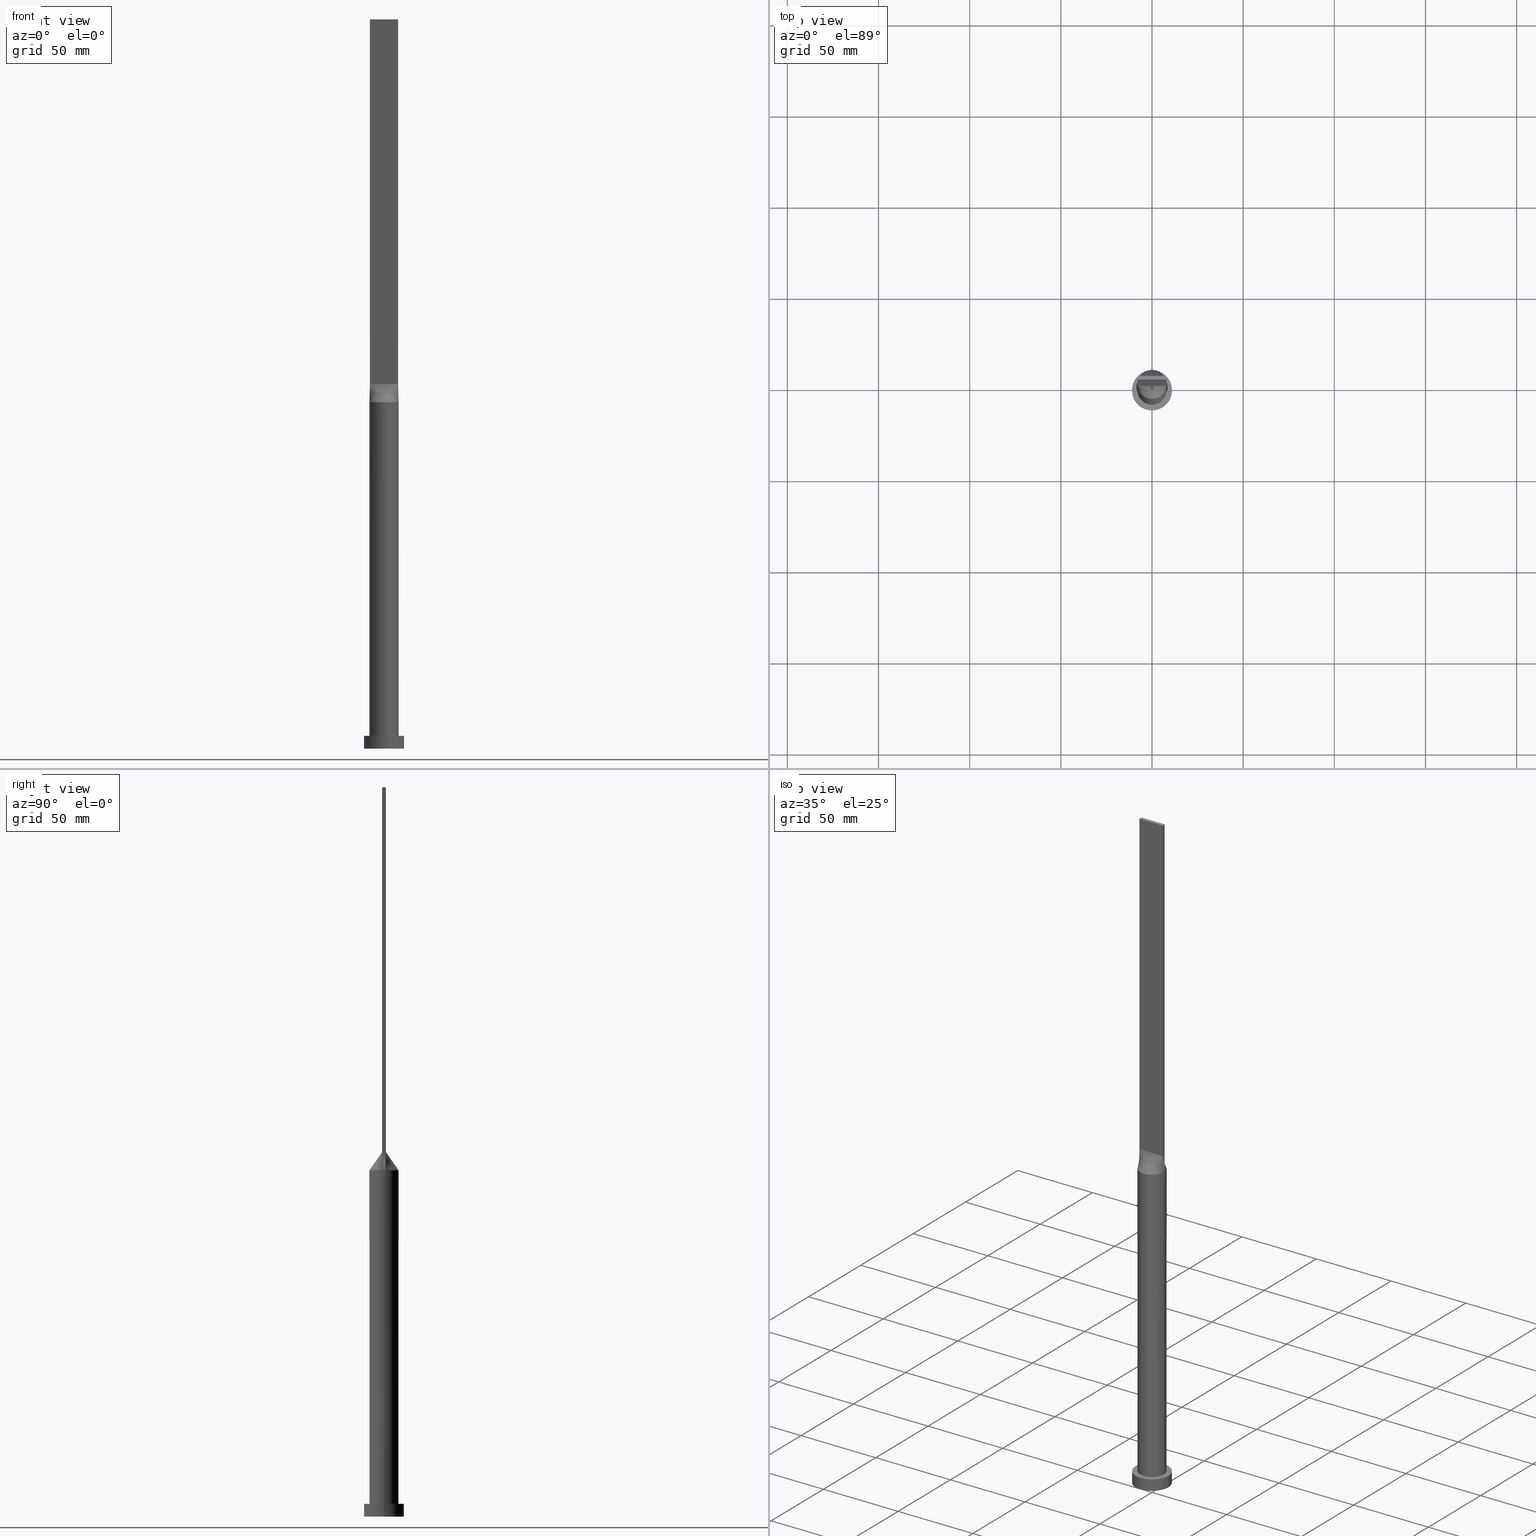
[diagram: canonical four-view strip — front | top / right | iso, engineering-drawing reading convention]
A machine part, canonical four-view strip (front | top / right | iso — engineering-drawing reading convention). The complete STEP part file that produces these views, byte-faithful:
ISO-10303-21;
HEADER;
FILE_DESCRIPTION (( 'STEP AP203' ),
    '1' );
FILE_NAME ('eaf4.STEP',
    '2023-02-13T08:32:09',
    ( '' ),
    ( '' ),
    'SwSTEP 2.0',
    'SolidWorks 2019',
    '' );
FILE_SCHEMA (( 'CONFIG_CONTROL_DESIGN' ));
ENDSEC;

DATA;
#1 = PLANE ( 'NONE',  #516 ) ;
#2 = CALENDAR_DATE ( 2023, 13, 2 ) ;
#3 = ORIENTED_EDGE ( 'NONE', *, *, #42, .T. ) ;
#4 = B_SPLINE_SURFACE_WITH_KNOTS ( 'NONE', 3, 1, ( 
 ( #138, #339 ),
 ( #525, #86 ),
 ( #294, #480 ),
 ( #435, #196 ),
 ( #389, #578 ),
 ( #161, #316 ),
 ( #50, #490 ),
 ( #546, #460 ),
 ( #588, #551 ),
 ( #254, #155 ),
 ( #5, #54 ),
 ( #260, #151 ),
 ( #354, #448 ),
 ( #20, #401 ),
 ( #543, #10 ),
 ( #502, #499 ),
 ( #397, #108 ),
 ( #214, #351 ),
 ( #318, #539 ),
 ( #596, #101 ),
 ( #557, #60 ),
 ( #98, #408 ),
 ( #262, #453 ),
 ( #13, #217 ),
 ( #362, #62 ),
 ( #221, #113 ),
 ( #503, #309 ),
 ( #601, #365 ),
 ( #64, #560 ),
 ( #110, #119 ) ),
 .UNSPECIFIED., .F., .F., .F.,
 ( 4, 2, 2, 2, 2, 2, 2, 2, 2, 2, 2, 2, 2, 2, 4 ),
 ( 2, 2 ),
 ( 0.000000000000000000, 0.1250000000000000555, 0.1875000000000000555, 0.2500000000000000555, 0.3125000000000000000, 0.3750000000000000000, 0.4374999999999999445, 0.4999999999999999445, 0.5624999999999998890, 0.6249999999999998890, 0.6875000000000000000, 0.7500000000000000000, 0.8125000000000000000, 0.8750000000000000000, 1.000000000000000000 ),
 ( 0.000000000000000000, 1.000000000000000000 ),
 .UNSPECIFIED. ) ;
#5 = CARTESIAN_POINT ( 'NONE',  ( -3.862537548001458987, -7.028047916340261381, 190.0000000000000000 ) ) ;
#6 = VECTOR ( 'NONE', #592, 1000.000000000000000 ) ;
#7 = VECTOR ( 'NONE', #568, 1000.000000000000000 ) ;
#8 = FACE_OUTER_BOUND ( 'NONE', #149, .T. ) ;
#9 = ORIENTED_EDGE ( 'NONE', *, *, #530, .F. ) ;
#10 = CARTESIAN_POINT ( 'NONE',  ( -0.3229166666666661301, -0.9999999999999991118, 200.0000000000000284 ) ) ;
#11 = CARTESIAN_POINT ( 'NONE',  ( 7.750000000000000000, -0.9999999999999997780, 400.0000000000000000 ) ) ;
#12 = EDGE_CURVE ( 'NONE', #319, #158, #105, .T. ) ;
#13 = CARTESIAN_POINT ( 'NONE',  ( 6.226863775955932212, -5.046530946333159129, 190.0000000000000284 ) ) ;
#14 = EDGE_CURVE ( 'NONE', #32, #61, #519, .T. ) ;
#15 = VERTEX_POINT ( 'NONE', #75 ) ;
#16 = DIRECTION ( 'NONE',  ( 0.000000000000000000, -0.000000000000000000, -1.000000000000000000 ) ) ;
#17 = VERTEX_POINT ( 'NONE', #335 ) ;
#18 = CC_DESIGN_PERSON_AND_ORGANIZATION_ASSIGNMENT ( #278, #231, ( #459 ) ) ;
#19 = VERTEX_POINT ( 'NONE', #417 ) ;
#20 = CARTESIAN_POINT ( 'NONE',  ( -1.172177046651859511, -7.934824862069280726, 189.9999999999999716 ) ) ;
#21 = CARTESIAN_POINT ( 'NONE',  ( 6.994548530637815453, 3.908833842696238570, 189.9999999999999716 ) ) ;
#22 = ORIENTED_EDGE ( 'NONE', *, *, #187, .F. ) ;
#23 = CARTESIAN_POINT ( 'NONE',  ( 2.260416666666666519, 1.000000000000000000, 200.0000000000000000 ) ) ;
#24 = CARTESIAN_POINT ( 'NONE',  ( -7.750000000000000000, -0.6666666666666648533, 200.0000000000000000 ) ) ;
#25 = DIRECTION ( 'NONE',  ( -0.000000000000000000, 0.000000000000000000, -1.000000000000000000 ) ) ;
#26 = ORIENTED_EDGE ( 'NONE', *, *, #485, .T. ) ;
#27 = CC_DESIGN_DATE_AND_TIME_ASSIGNMENT ( #172, #423, ( #247 ) ) ;
#28 = FACE_OUTER_BOUND ( 'NONE', #404, .T. ) ;
#29 = CARTESIAN_POINT ( 'NONE',  ( -7.999729586091648414, -0.3426598302205468571, 190.0000000000000000 ) ) ;
#30 = CARTESIAN_POINT ( 'NONE',  ( 3.229166666666666519, 1.000000000000000000, 200.0000000000000000 ) ) ;
#31 = CARTESIAN_POINT ( 'NONE',  ( 7.750000000000000000, 1.000000000000000000, 400.0000000000000000 ) ) ;
#32 = VERTEX_POINT ( 'NONE', #325 ) ;
#33 = CARTESIAN_POINT ( 'NONE',  ( -1.291666666666666741, 1.000000000000000000, 200.0000000000000000 ) ) ;
#34 = LINE ( 'NONE', #31, #438 ) ;
#35 = CIRCLE ( 'NONE', #84, 11.00000000000000000 ) ;
#36 = FACE_OUTER_BOUND ( 'NONE', #385, .T. ) ;
#37 = CARTESIAN_POINT ( 'NONE',  ( -0.5861720261543129640, 7.999999999999998224, 189.9999999999999432 ) ) ;
#38 = CYLINDRICAL_SURFACE ( 'NONE', #341, 8.000000000000000000 ) ;
#39 = DIRECTION ( 'NONE',  ( 0.000000000000000000, 0.000000000000000000, 1.000000000000000000 ) ) ;
#40 = CARTESIAN_POINT ( 'NONE',  ( 6.994548530637815453, 3.908833842696238570, 189.9999999999999716 ) ) ;
#41 = COORDINATED_UNIVERSAL_TIME_OFFSET ( 1, 0, .AHEAD. ) ;
#42 = EDGE_CURVE ( 'NONE', #251, #32, #115, .T. ) ;
#43 = CARTESIAN_POINT ( 'NONE',  ( 7.977894035085165036, 0.6853196604410960457, 190.0000000000000000 ) ) ;
#44 = CC_DESIGN_APPROVAL ( #132, ( #99 ) ) ;
#45 = CARTESIAN_POINT ( 'NONE',  ( -7.750000000000000000, 1.000000000000000000, 400.0000000000000000 ) ) ;
#46 = DIRECTION ( 'NONE',  ( 1.000000000000000000, 0.000000000000000000, 0.000000000000000000 ) ) ;
#47 = B_SPLINE_SURFACE_WITH_KNOTS ( 'NONE', 3, 1, ( 
 ( #179, #282 ),
 ( #412, #414 ),
 ( #471, #375 ),
 ( #29, #374 ),
 ( #124, #24 ),
 ( #512, #473 ) ),
 .UNSPECIFIED., .F., .F., .F.,
 ( 4, 2, 4 ),
 ( 2, 2 ),
 ( 0.000000000000000000, 0.5000000000000000000, 1.000000000000000000 ),
 ( 0.000000000000000000, 1.000000000000000000 ),
 .UNSPECIFIED. ) ;
#48 = LINE ( 'NONE', #100, #411 ) ;
#49 = ORIENTED_EDGE ( 'NONE', *, *, #378, .F. ) ;
#50 = CARTESIAN_POINT ( 'NONE',  ( -6.226863775955933988, -5.046530946333157353, 190.0000000000000568 ) ) ;
#51 = DIRECTION ( 'NONE',  ( 0.000000000000000000, 0.000000000000000000, 1.000000000000000000 ) ) ;
#52 = CALENDAR_DATE ( 2023, 13, 2 ) ;
#53 = ORIENTED_EDGE ( 'NONE', *, *, #154, .F. ) ;
#54 = CARTESIAN_POINT ( 'NONE',  ( -2.260416666666665630, -0.9999999999999991118, 200.0000000000000284 ) ) ;
#55 = VECTOR ( 'NONE', #571, 1000.000000000000114 ) ;
#56 = AXIS2_PLACEMENT_3D ( 'NONE', #528, #324, #25 ) ;
#57 = LINE ( 'NONE', #11, #623 ) ;
#58 = ADVANCED_FACE ( 'NONE', ( #223 ), #47, .T. ) ;
#59 = ORIENTED_EDGE ( 'NONE', *, *, #277, .F. ) ;
#60 = CARTESIAN_POINT ( 'NONE',  ( 2.583333333333333037, -0.9999999999999991118, 200.0000000000000284 ) ) ;
#61 = VERTEX_POINT ( 'NONE', #327 ) ;
#62 = CARTESIAN_POINT ( 'NONE',  ( 4.520833333333333037, -0.9999999999999995559, 200.0000000000000284 ) ) ;
#63 = VERTEX_POINT ( 'NONE', #467 ) ;
#64 = CARTESIAN_POINT ( 'NONE',  ( 7.849610172922084850, -1.679519592204998357, 190.0000000000000000 ) ) ;
#65 = LINE ( 'NONE', #232, #315 ) ;
#66 = CARTESIAN_POINT ( 'NONE',  ( -3.229166666666666519, 1.000000000000000000, 200.0000000000000568 ) ) ;
#67 = ORIENTED_EDGE ( 'NONE', *, *, #14, .T. ) ;
#68 = CARTESIAN_POINT ( 'NONE',  ( 3.862537548001455878, 7.028047916340264933, 190.0000000000000000 ) ) ;
#69 = ORIENTED_EDGE ( 'NONE', *, *, #530, .T. ) ;
#70 = DIRECTION ( 'NONE',  ( 1.000000000000000000, 0.000000000000000000, 0.000000000000000000 ) ) ;
#71 = ORIENTED_EDGE ( 'NONE', *, *, #274, .F. ) ;
#72 = CARTESIAN_POINT ( 'NONE',  ( -7.750000000000000000, 1.000000000000000000, 200.0000000000000000 ) ) ;
#73 = CARTESIAN_POINT ( 'NONE',  ( 2.302877821226935406, 7.683241396761612663, 190.0000000000000284 ) ) ;
#74 = VECTOR ( 'NONE', #391, 1000.000000000000000 ) ;
#75 = CARTESIAN_POINT ( 'NONE',  ( 8.000000000000000000, 9.797174393178825657E-16, 7.000000000000000000 ) ) ;
#76 = EDGE_CURVE ( 'NONE', #476, #559, #226, .T. ) ;
#77 = CARTESIAN_POINT ( 'NONE',  ( 0.3229166666666666297, 1.000000000000000000, 200.0000000000000000 ) ) ;
#78 = ORIENTED_EDGE ( 'NONE', *, *, #42, .F. ) ;
#79 = ORIENTED_EDGE ( 'NONE', *, *, #244, .T. ) ;
#80 = LINE ( 'NONE', #352, #6 ) ;
#81 = ORIENTED_EDGE ( 'NONE', *, *, #12, .T. ) ;
#82 = EDGE_CURVE ( 'NONE', #218, #487, #633, .T. ) ;
#83 = CARTESIAN_POINT ( 'NONE',  ( 7.750000000000000000, -0.9999999999999997780, 400.0000000000000000 ) ) ;
#84 = AXIS2_PLACEMENT_3D ( 'NONE', #249, #289, #242 ) ;
#85 = ORGANIZATION ( 'NEUR�EN�', 'NEUR�EN�', '' ) ;
#86 = CARTESIAN_POINT ( 'NONE',  ( -7.104166666666666963, -0.9999999999999986677, 200.0000000000000000 ) ) ;
#87 = CARTESIAN_POINT ( 'NONE',  ( 7.849610172922079521, 1.679519592204998801, 190.0000000000000284 ) ) ;
#88 = CARTESIAN_POINT ( 'NONE',  ( 7.934268799922667981, -1.023776637617846319, 190.0000000000000000 ) ) ;
#89 = DIRECTION ( 'NONE',  ( 0.000000000000000000, 0.000000000000000000, 1.000000000000000000 ) ) ;
#90 = CARTESIAN_POINT ( 'NONE',  ( -7.999864793045825984, 2.648518981350782698E-14, 190.0000000000000284 ) ) ;
#91 = PERSON_AND_ORGANIZATION ( #142, #85 ) ;
#92 = ORIENTED_EDGE ( 'NONE', *, *, #154, .T. ) ;
#93 = CARTESIAN_POINT ( 'NONE',  ( 7.750000000000000000, -0.6666666666666660745, 200.0000000000000000 ) ) ;
#94 =( GEOMETRIC_REPRESENTATION_CONTEXT ( 3 ) GLOBAL_UNCERTAINTY_ASSIGNED_CONTEXT ( ( #213 ) ) GLOBAL_UNIT_ASSIGNED_CONTEXT ( ( #527, #348, #432 ) ) REPRESENTATION_CONTEXT ( 'NONE', 'WORKASPACE' ) );
#95 = DIRECTION ( 'NONE',  ( 1.000000000000000000, 0.000000000000000000, -0.000000000000000000 ) ) ;
#96 = DIRECTION ( 'NONE',  ( 1.000000000000000000, 0.000000000000000000, 0.000000000000000000 ) ) ;
#97 = ORIENTED_EDGE ( 'NONE', *, *, #378, .T. ) ;
#98 = CARTESIAN_POINT ( 'NONE',  ( 5.183259239191612799, -6.116644610143060490, 189.9999999999999432 ) ) ;
#99 = PRODUCT_DEFINITION ( 'NEZN�M�', '', #459, #542 ) ;
#100 = CARTESIAN_POINT ( 'NONE',  ( -7.842111466536100473, -1.011885350520785209, 195.0000000000000000 ) ) ;
#101 = CARTESIAN_POINT ( 'NONE',  ( 2.260416666666665630, -0.9999999999999991118, 200.0000000000000568 ) ) ;
#102 = CARTESIAN_POINT ( 'NONE',  ( -11.00000000000000000, 0.000000000000000000, 0.000000000000000000 ) ) ;
#103 = CARTESIAN_POINT ( 'NONE',  ( -5.562660223239390689, 5.770452176164420521, 190.0000000000000568 ) ) ;
#104 = EDGE_LOOP ( 'NONE', ( #79, #305, #492, #586, #53 ) ) ;
#105 = CIRCLE ( 'NONE', #561, 11.00000000000000000 ) ;
#106 = AXIS2_PLACEMENT_3D ( 'NONE', #518, #186, #70 ) ;
#107 = APPLICATION_PROTOCOL_DEFINITION ( 'international standard', 'config_control_design', 1994, #433 ) ;
#108 = CARTESIAN_POINT ( 'NONE',  ( 0.6458333333333330373, -0.9999999999999991118, 200.0000000000000284 ) ) ;
#109 = EDGE_LOOP ( 'NONE', ( #121, #458, #22, #545 ) ) ;
#110 = CARTESIAN_POINT ( 'NONE',  ( 7.934222933072200945, -1.023770701041574860, 190.0000000000000000 ) ) ;
#111 = DIRECTION ( 'NONE',  ( -1.000000000000000000, 0.000000000000000000, 0.000000000000000000 ) ) ;
#112 = PERSON_AND_ORGANIZATION ( #142, #85 ) ;
#113 = CARTESIAN_POINT ( 'NONE',  ( 5.166666666666666963, -0.9999999999999995559, 200.0000000000000000 ) ) ;
#114 = CARTESIAN_POINT ( 'NONE',  ( -0.3229166666666667407, 1.000000000000000000, 200.0000000000000000 ) ) ;
#115 = LINE ( 'NONE', #285, #267 ) ;
#116 = CARTESIAN_POINT ( 'NONE',  ( 7.849610172922079521, 1.679519592204998801, 190.0000000000000284 ) ) ;
#117 = ORIENTED_EDGE ( 'NONE', *, *, #182, .T. ) ;
#118 = CARTESIAN_POINT ( 'NONE',  ( -7.934222933072200945, 1.023770701041572195, 190.0000000000000000 ) ) ;
#119 = CARTESIAN_POINT ( 'NONE',  ( 7.750000000000000000, -0.9999999999999997780, 200.0000000000000000 ) ) ;
#120 = APPROVAL_PERSON_ORGANIZATION ( #565, #195, #616 ) ;
#121 = ORIENTED_EDGE ( 'NONE', *, *, #76, .T. ) ;
#122 = PERSON_AND_ORGANIZATION_ROLE ( 'classification_officer' ) ;
#123 = CC_DESIGN_PERSON_AND_ORGANIZATION_ASSIGNMENT ( #605, #122, ( #247 ) ) ;
#124 = CARTESIAN_POINT ( 'NONE',  ( -7.977894035085166813, -0.6853196604410948245, 190.0000000000000000 ) ) ;
#125 = CARTESIAN_POINT ( 'NONE',  ( 4.520833333333333037, 1.000000000000000000, 200.0000000000000000 ) ) ;
#126 = EDGE_CURVE ( 'NONE', #422, #61, #321, .T. ) ;
#127 = CARTESIAN_POINT ( 'NONE',  ( -5.166666666666668739, 1.000000000000000000, 200.0000000000000568 ) ) ;
#128 = CARTESIAN_POINT ( 'NONE',  ( -11.00000000000000000, 0.000000000000000000, 7.000000000000000000 ) ) ;
#129 = CARTESIAN_POINT ( 'NONE',  ( 6.458333333333333037, 1.000000000000000000, 200.0000000000000000 ) ) ;
#130 = VECTOR ( 'NONE', #166, 1000.000000000000114 ) ;
#131 = DIRECTION ( 'NONE',  ( 0.000000000000000000, 0.000000000000000000, 1.000000000000000000 ) ) ;
#132 = APPROVAL ( #452, 'NEUR�EN�' ) ;
#133 = LINE ( 'NONE', #238, #74 ) ;
#134 = CARTESIAN_POINT ( 'NONE',  ( -7.750000000000000000, 1.000000000000000000, 400.0000000000000000 ) ) ;
#135 = CARTESIAN_POINT ( 'NONE',  ( -11.00000000000000000, 0.000000000000000000, 7.000000000000000000 ) ) ;
#136 = CARTESIAN_POINT ( 'NONE',  ( 2.847317194822259534, 7.497028652483948008, 189.9999999999999716 ) ) ;
#137 = VERTEX_POINT ( 'NONE', #128 ) ;
#138 = CARTESIAN_POINT ( 'NONE',  ( -7.934222933072202721, -1.023770701041571973, 190.0000000000000000 ) ) ;
#139 = CARTESIAN_POINT ( 'NONE',  ( -6.226863775955933100, 5.046530946333157353, 190.0000000000000284 ) ) ;
#140 = CIRCLE ( 'NONE', #269, 11.00000000000000000 ) ;
#141 = DIRECTION ( 'NONE',  ( 1.000000000000000000, 0.000000000000000000, -0.000000000000000000 ) ) ;
#142 = PERSON ( 'NEUR�EN�', 'NEUR�EN�', 'NEUR�EN�', ('NEUR�EN�'), ('NEUR�EN�'), ('NEUR�EN�') ) ;
#143 = CARTESIAN_POINT ( 'NONE',  ( 7.750000000000000000, -1.000000000000000000, 200.0000000000000000 ) ) ;
#144 = CARTESIAN_POINT ( 'NONE',  ( -2.847317194822260422, 7.497028652483947120, 190.0000000000000284 ) ) ;
#145 = EDGE_LOOP ( 'NONE', ( #558, #49, #59, #176, #416, #593 ) ) ;
#146 = CARTESIAN_POINT ( 'NONE',  ( 0.000000000000000000, 0.000000000000000000, 7.000000000000000000 ) ) ;
#147 = FACE_OUTER_BOUND ( 'NONE', #610, .T. ) ;
#148 = PERSON_AND_ORGANIZATION ( #142, #85 ) ;
#149 = EDGE_LOOP ( 'NONE', ( #626, #500, #259, #117 ) ) ;
#150 = AXIS2_PLACEMENT_3D ( 'NONE', #157, #310, #16 ) ;
#151 = CARTESIAN_POINT ( 'NONE',  ( -1.614583333333332815, -0.9999999999999991118, 200.0000000000000568 ) ) ;
#152 = LOCAL_TIME ( 9, 32, 9.000000000000000000, #184 ) ;
#153 = DIRECTION ( 'NONE',  ( -1.000000000000000000, 0.000000000000000000, 0.000000000000000000 ) ) ;
#154 = EDGE_CURVE ( 'NONE', #536, #559, #619, .T. ) ;
#155 = CARTESIAN_POINT ( 'NONE',  ( -2.583333333333332593, -0.9999999999999988898, 200.0000000000000000 ) ) ;
#156 = PRODUCT_DEFINITION_SHAPE ( 'NONE', 'NONE',  #99 ) ;
#157 = CARTESIAN_POINT ( 'NONE',  ( 7.750000000000000000, 1.000000000000000000, 400.0000000000000000 ) ) ;
#158 = VERTEX_POINT ( 'NONE', #436 ) ;
#159 = CARTESIAN_POINT ( 'NONE',  ( 0.000000000000000000, 0.000000000000000000, 7.000000000000000000 ) ) ;
#160 = ORIENTED_EDGE ( 'NONE', *, *, #248, .F. ) ;
#161 = CARTESIAN_POINT ( 'NONE',  ( -6.511821874825411527, -4.668925682402791821, 190.0000000000000284 ) ) ;
#162 = AXIS2_PLACEMENT_3D ( 'NONE', #83, #240, #89 ) ;
#163 = ORIENTED_EDGE ( 'NONE', *, *, #277, .T. ) ;
#164 = LOCAL_TIME ( 9, 32, 9.000000000000000000, #495 ) ;
#165 = ADVANCED_FACE ( 'NONE', ( #628 ), #531, .F. ) ;
#166 = DIRECTION ( 'NONE',  ( -0.01841911599500828389, -0.002376660128388048514, 0.9998275289531671772 ) ) ;
#167 = VERTEX_POINT ( 'NONE', #197 ) ;
#168 = CARTESIAN_POINT ( 'NONE',  ( -4.333237558274722900, 6.745559271922134670, 190.0000000000000000 ) ) ;
#169 = ORIENTED_EDGE ( 'NONE', *, *, #274, .T. ) ;
#170 = APPLICATION_CONTEXT ( 'configuration controlled 3d designs of mechanical parts and assemblies' ) ;
#171 = EDGE_CURVE ( 'NONE', #559, #32, #573, .T. ) ;
#172 = DATE_AND_TIME ( #613, #600 ) ;
#173 = DIRECTION ( 'NONE',  ( 1.000000000000000000, -6.994852725712931474E-17, 0.000000000000000000 ) ) ;
#174 = EDGE_LOOP ( 'NONE', ( #26, #222 ) ) ;
#175 = CARTESIAN_POINT ( 'NONE',  ( -4.520833333333333925, 1.000000000000000000, 200.0000000000000568 ) ) ;
#176 = ORIENTED_EDGE ( 'NONE', *, *, #82, .F. ) ;
#177 = CARTESIAN_POINT ( 'NONE',  ( 5.166666666666666963, 1.000000000000000000, 200.0000000000000000 ) ) ;
#178 = ORIENTED_EDGE ( 'NONE', *, *, #496, .F. ) ;
#179 = CARTESIAN_POINT ( 'NONE',  ( -7.934222933072200945, 1.023770701041573972, 190.0000000000000000 ) ) ;
#180 = PERSON_AND_ORGANIZATION_ROLE ( 'design_supplier' ) ;
#181 = CARTESIAN_POINT ( 'NONE',  ( 5.183259239191615464, 6.116644610143058713, 190.0000000000000284 ) ) ;
#182 = EDGE_CURVE ( 'NONE', #167, #63, #133, .T. ) ;
#183 = CARTESIAN_POINT ( 'NONE',  ( 7.842111466536100473, -1.011885350520787430, 195.0000000000000000 ) ) ;
#184 = COORDINATED_UNIVERSAL_TIME_OFFSET ( 1, 0, .AHEAD. ) ;
#185 = CARTESIAN_POINT ( 'NONE',  ( -7.842111466536100473, 1.011885350520786098, 195.0000000000000000 ) ) ;
#186 = DIRECTION ( 'NONE',  ( 0.000000000000000000, 0.000000000000000000, 1.000000000000000000 ) ) ;
#187 = EDGE_CURVE ( 'NONE', #63, #410, #34, .T. ) ;
#188 = VECTOR ( 'NONE', #569, 1000.000000000000114 ) ;
#189 = CARTESIAN_POINT ( 'NONE',  ( -3.862537548001455878, 7.028047916340264045, 190.0000000000000284 ) ) ;
#190 = APPROVAL_DATE_TIME ( #376, #195 ) ;
#191 = CARTESIAN_POINT ( 'NONE',  ( 0.000000000000000000, 0.000000000000000000, 190.0000000000000000 ) ) ;
#192 = SHAPE_DEFINITION_REPRESENTATION ( #156, #602 ) ;
#193 = VERTEX_POINT ( 'NONE', #235 ) ;
#194 = CARTESIAN_POINT ( 'NONE',  ( 6.226863775955932212, 5.046530946333158241, 190.0000000000000853 ) ) ;
#195 = APPROVAL ( #328, 'NEUR�EN�' ) ;
#196 = CARTESIAN_POINT ( 'NONE',  ( -5.489583333333332149, -0.9999999999999986677, 200.0000000000000000 ) ) ;
#197 = CARTESIAN_POINT ( 'NONE',  ( 7.750000000000000000, -0.9999999999999997780, 400.0000000000000000 ) ) ;
#198 = FACE_OUTER_BOUND ( 'NONE', #407, .T. ) ;
#199 = ADVANCED_FACE ( 'NONE', ( #288 ), #625, .T. ) ;
#200 = CARTESIAN_POINT ( 'NONE',  ( 5.562660223239392465, 5.770452176164421410, 190.0000000000000284 ) ) ;
#201 = CARTESIAN_POINT ( 'NONE',  ( 7.750000000000000000, 0.6666666666666671848, 200.0000000000000000 ) ) ;
#202 = FACE_BOUND ( 'NONE', #273, .T. ) ;
#203 = APPROVAL_STATUS ( 'not_yet_approved' ) ;
#204 = ORIENTED_EDGE ( 'NONE', *, *, #244, .F. ) ;
#205 = CARTESIAN_POINT ( 'NONE',  ( -7.934257051336532029, -1.023775119746132001, 190.0000000000000000 ) ) ;
#206 = PLANE ( 'NONE',  #381 ) ;
#207 = ORIENTED_EDGE ( 'NONE', *, *, #171, .T. ) ;
#208 = VECTOR ( 'NONE', #387, 1000.000000000000000 ) ;
#209 = CC_DESIGN_SECURITY_CLASSIFICATION ( #247, ( #459 ) ) ;
#210 = CARTESIAN_POINT ( 'NONE',  ( -7.750000000000000000, -0.9999999999999986677, 400.0000000000000000 ) ) ;
#211 = CALENDAR_DATE ( 2023, 13, 2 ) ;
#212 = ORIENTED_EDGE ( 'NONE', *, *, #14, .F. ) ;
#213 = UNCERTAINTY_MEASURE_WITH_UNIT (LENGTH_MEASURE( 1.000000000000000082E-05 ), #527, 'distance_accuracy_value', 'NONE');
#214 = CARTESIAN_POINT ( 'NONE',  ( 2.302877821226934074, -7.683241396761609998, 189.9999999999999432 ) ) ;
#215 = FACE_OUTER_BOUND ( 'NONE', #603, .T. ) ;
#216 = ORIENTED_EDGE ( 'NONE', *, *, #485, .F. ) ;
#217 = CARTESIAN_POINT ( 'NONE',  ( 4.197916666666666963, -0.9999999999999993339, 200.0000000000000284 ) ) ;
#218 = VERTEX_POINT ( 'NONE', #90 ) ;
#219 = PLANE ( 'NONE',  #150 ) ;
#220 = ORIENTED_EDGE ( 'NONE', *, *, #126, .T. ) ;
#221 = CARTESIAN_POINT ( 'NONE',  ( 6.994548530637813677, -3.908833842696238570, 189.9999999999999147 ) ) ;
#222 = ORIENTED_EDGE ( 'NONE', *, *, #638, .T. ) ;
#223 = FACE_OUTER_BOUND ( 'NONE', #104, .T. ) ;
#224 = EDGE_LOOP ( 'NONE', ( #463, #553, #564, #265, #204, #160 ) ) ;
#225 = CARTESIAN_POINT ( 'NONE',  ( -7.750000000000000000, 1.000000000000000000, 200.0000000000000000 ) ) ;
#226 = LINE ( 'NONE', #72, #332 ) ;
#227 = COORDINATED_UNIVERSAL_TIME_OFFSET ( 1, 0, .AHEAD. ) ;
#228 = VECTOR ( 'NONE', #437, 1000.000000000000000 ) ;
#229 = CARTESIAN_POINT ( 'NONE',  ( -5.489583333333335702, 1.000000000000000000, 200.0000000000000568 ) ) ;
#230 = CARTESIAN_POINT ( 'NONE',  ( 0.000000000000000000, 0.000000000000000000, 190.0000000000000000 ) ) ;
#231 = PERSON_AND_ORGANIZATION_ROLE ( 'creator' ) ;
#232 = CARTESIAN_POINT ( 'NONE',  ( -7.750000000000000000, -0.9999999999999986677, 400.0000000000000000 ) ) ;
#233 = ORIENTED_EDGE ( 'NONE', *, *, #76, .F. ) ;
#234 = CARTESIAN_POINT ( 'NONE',  ( 4.333237558274722900, 6.745559271922132893, 190.0000000000000284 ) ) ;
#235 = CARTESIAN_POINT ( 'NONE',  ( -8.000000000000000000, 0.000000000000000000, 7.000000000000000000 ) ) ;
#236 = ORIENTED_EDGE ( 'NONE', *, *, #368, .T. ) ;
#237 = VECTOR ( 'NONE', #491, 1000.000000000000000 ) ;
#238 = CARTESIAN_POINT ( 'NONE',  ( 7.750000000000000000, -0.9999999999999997780, 400.0000000000000000 ) ) ;
#239 = APPROVAL_PERSON_ORGANIZATION ( #256, #132, #640 ) ;
#240 = DIRECTION ( 'NONE',  ( -1.000000000000000000, 0.000000000000000000, 0.000000000000000000 ) ) ;
#241 = ADVANCED_FACE ( 'NONE', ( #426 ), #344, .F. ) ;
#242 = DIRECTION ( 'NONE',  ( 1.000000000000000000, 0.000000000000000000, 0.000000000000000000 ) ) ;
#243 = CARTESIAN_POINT ( 'NONE',  ( 1.172177046651856624, 7.934824862069278950, 190.0000000000000284 ) ) ;
#244 = EDGE_CURVE ( 'NONE', #536, #218, #323, .T. ) ;
#245 = CARTESIAN_POINT ( 'NONE',  ( 7.977894035085165036, -0.6853196604410977111, 190.0000000000000000 ) ) ;
#246 = CARTESIAN_POINT ( 'NONE',  ( -7.849610172922081297, 1.679519592204999023, 189.9999999999999716 ) ) ;
#247 = SECURITY_CLASSIFICATION ( '', '', #320 ) ;
#248 = EDGE_CURVE ( 'NONE', #19, #536, #567, .T. ) ;
#249 = CARTESIAN_POINT ( 'NONE',  ( 0.000000000000000000, 0.000000000000000000, 0.000000000000000000 ) ) ;
#250 = PERSON_AND_ORGANIZATION ( #142, #85 ) ;
#251 = VERTEX_POINT ( 'NONE', #635 ) ;
#252 = CARTESIAN_POINT ( 'NONE',  ( 0.000000000000000000, 0.000000000000000000, 190.0000000000000000 ) ) ;
#253 = APPLICATION_PROTOCOL_DEFINITION ( 'international standard', 'config_control_design', 1994, #170 ) ;
#254 = CARTESIAN_POINT ( 'NONE',  ( -4.333237558274724677, -6.745559271922134670, 190.0000000000000284 ) ) ;
#255 = DIRECTION ( 'NONE',  ( -1.000000000000000000, 6.994852725712931474E-17, 0.000000000000000000 ) ) ;
#256 = PERSON_AND_ORGANIZATION ( #142, #85 ) ;
#257 = EDGE_CURVE ( 'NONE', #313, #158, #80, .T. ) ;
#258 = CARTESIAN_POINT ( 'NONE',  ( -0.6458333333333333703, 1.000000000000000000, 200.0000000000000000 ) ) ;
#259 = ORIENTED_EDGE ( 'NONE', *, *, #579, .T. ) ;
#260 = CARTESIAN_POINT ( 'NONE',  ( -2.847317194822263531, -7.497028652483947120, 189.9999999999999716 ) ) ;
#261 = DIRECTION ( 'NONE',  ( -0.000000000000000000, -0.000000000000000000, -1.000000000000000000 ) ) ;
#262 = CARTESIAN_POINT ( 'NONE',  ( 5.562660223239390689, -5.770452176164421410, 190.0000000000000568 ) ) ;
#263 = ORIENTED_EDGE ( 'NONE', *, *, #384, .T. ) ;
#264 = FACE_OUTER_BOUND ( 'NONE', #174, .T. ) ;
#265 = ORIENTED_EDGE ( 'NONE', *, *, #390, .F. ) ;
#266 = EDGE_LOOP ( 'NONE', ( #207, #78, #178, #595 ) ) ;
#267 = VECTOR ( 'NONE', #612, 1000.000000000000000 ) ;
#268 = DIRECTION ( 'NONE',  ( 1.000000000000000000, 0.000000000000000000, 0.000000000000000000 ) ) ;
#269 = AXIS2_PLACEMENT_3D ( 'NONE', #146, #537, #46 ) ;
#270 = ORIENTED_EDGE ( 'NONE', *, *, #462, .T. ) ;
#271 = DATE_AND_TIME ( #2, #361 ) ;
#272 = CARTESIAN_POINT ( 'NONE',  ( 4.197916666666666963, 1.000000000000000000, 200.0000000000000284 ) ) ;
#273 = EDGE_LOOP ( 'NONE', ( #364, #366 ) ) ;
#274 = EDGE_CURVE ( 'NONE', #167, #61, #57, .T. ) ;
#275 = CARTESIAN_POINT ( 'NONE',  ( -7.750000000000000000, -0.9999999999999986677, 200.0000000000000000 ) ) ;
#276 = DIRECTION ( 'NONE',  ( -1.000000000000000000, -0.000000000000000000, -0.000000000000000000 ) ) ;
#277 = EDGE_CURVE ( 'NONE', #487, #422, #350, .T. ) ;
#278 = PERSON_AND_ORGANIZATION ( #142, #85 ) ;
#279 = AXIS2_PLACEMENT_3D ( 'NONE', #230, #615, #367 ) ;
#280 = CARTESIAN_POINT ( 'NONE',  ( -7.104166666666667851, 1.000000000000000000, 200.0000000000000000 ) ) ;
#281 = CIRCLE ( 'NONE', #624, 8.000000000000000000 ) ;
#282 = CARTESIAN_POINT ( 'NONE',  ( -7.750000000000000000, 1.000000000000000000, 200.0000000000000000 ) ) ;
#283 = LINE ( 'NONE', #470, #293 ) ;
#284 = CARTESIAN_POINT ( 'NONE',  ( -7.934264564332944580, 1.023776086464161406, 190.0000000000000000 ) ) ;
#285 = CARTESIAN_POINT ( 'NONE',  ( -7.750000000000000000, -0.9999999999999986677, 400.0000000000000000 ) ) ;
#286 = ADVANCED_FACE ( 'NONE', ( #215 ), #639, .F. ) ;
#287 = CARTESIAN_POINT ( 'NONE',  ( -7.750000000000000000, 1.000000000000000000, 200.0000000000000000 ) ) ;
#288 = FACE_OUTER_BOUND ( 'NONE', #145, .T. ) ;
#289 = DIRECTION ( 'NONE',  ( 0.000000000000000000, 0.000000000000000000, 1.000000000000000000 ) ) ;
#290 = CC_DESIGN_PERSON_AND_ORGANIZATION_ASSIGNMENT ( #91, #451, ( #99 ) ) ;
#291 = CIRCLE ( 'NONE', #371, 8.000000000000000000 ) ;
#292 = CARTESIAN_POINT ( 'NONE',  ( -5.562660223239390689, 5.770452176164420521, 190.0000000000000568 ) ) ;
#293 = VECTOR ( 'NONE', #331, 1000.000000000000000 ) ;
#294 = CARTESIAN_POINT ( 'NONE',  ( -7.675166908885238115, -2.399868494543664799, 189.9999999999999716 ) ) ;
#295 = ADVANCED_FACE ( 'NONE', ( #147 ), #349, .T. ) ;
#296 = CARTESIAN_POINT ( 'NONE',  ( 6.511821874825409751, 4.668925682402791821, 190.0000000000000284 ) ) ;
#297 = LINE ( 'NONE', #637, #228 ) ;
#298 = CARTESIAN_POINT ( 'NONE',  ( -1.172177046651856402, 7.934824862069282503, 190.0000000000000568 ) ) ;
#299 = CARTESIAN_POINT ( 'NONE',  ( -3.862537548001455878, 7.028047916340264045, 190.0000000000000284 ) ) ;
#300 = CC_DESIGN_PERSON_AND_ORGANIZATION_ASSIGNMENT ( #112, #180, ( #459 ) ) ;
#301 = DIRECTION ( 'NONE',  ( -0.000000000000000000, -0.000000000000000000, -1.000000000000000000 ) ) ;
#302 = DIRECTION ( 'NONE',  ( 1.000000000000000000, 0.000000000000000000, 0.000000000000000000 ) ) ;
#303 = DATE_TIME_ROLE ( 'creation_date' ) ;
#304 = VECTOR ( 'NONE', #488, 1000.000000000000000 ) ;
#305 = ORIENTED_EDGE ( 'NONE', *, *, #82, .T. ) ;
#306 = CARTESIAN_POINT ( 'NONE',  ( 7.999729586091648414, -0.3426598302205492996, 190.0000000000000000 ) ) ;
#307 = DIRECTION ( 'NONE',  ( 0.000000000000000000, 0.000000000000000000, 1.000000000000000000 ) ) ;
#308 = CARTESIAN_POINT ( 'NONE',  ( 0.000000000000000000, 0.000000000000000000, 0.000000000000000000 ) ) ;
#309 = CARTESIAN_POINT ( 'NONE',  ( 5.489583333333333925, -0.9999999999999995559, 200.0000000000000000 ) ) ;
#310 = DIRECTION ( 'NONE',  ( 0.000000000000000000, -1.000000000000000000, 0.000000000000000000 ) ) ;
#311 = CC_DESIGN_DATE_AND_TIME_ASSIGNMENT ( #636, #303, ( #99 ) ) ;
#312 = LINE ( 'NONE', #541, #130 ) ;
#313 = VERTEX_POINT ( 'NONE', #544 ) ;
#314 = AXIS2_PLACEMENT_3D ( 'NONE', #632, #39, #302 ) ;
#315 = VECTOR ( 'NONE', #173, 1000.000000000000000 ) ;
#316 = CARTESIAN_POINT ( 'NONE',  ( -4.520833333333331261, -0.9999999999999986677, 200.0000000000000000 ) ) ;
#317 = CARTESIAN_POINT ( 'NONE',  ( 0.000000000000000000, 0.000000000000000000, 190.0000000000000000 ) ) ;
#318 = CARTESIAN_POINT ( 'NONE',  ( 2.847317194822259534, -7.497028652483948008, 190.0000000000000284 ) ) ;
#319 = VERTEX_POINT ( 'NONE', #102 ) ;
#320 = SECURITY_CLASSIFICATION_LEVEL ( 'unclassified' ) ;
#321 = LINE ( 'NONE', #183, #188 ) ;
#322 = ADVANCED_FACE ( 'NONE', ( #8 ), #1, .T. ) ;
#323 = CIRCLE ( 'NONE', #314, 8.000000000000000000 ) ;
#324 = DIRECTION ( 'NONE',  ( 1.000000000000000000, 0.000000000000000000, -0.000000000000000000 ) ) ;
#325 = CARTESIAN_POINT ( 'NONE',  ( -7.750000000000000000, -0.9999999999999986677, 200.0000000000000000 ) ) ;
#326 = CARTESIAN_POINT ( 'NONE',  ( 1.614583333333333481, 1.000000000000000000, 200.0000000000000000 ) ) ;
#327 = CARTESIAN_POINT ( 'NONE',  ( 7.750000000000000000, -0.9999999999999997780, 200.0000000000000000 ) ) ;
#328 = APPROVAL_STATUS ( 'not_yet_approved' ) ;
#329 = CARTESIAN_POINT ( 'NONE',  ( 3.552083333333333481, 1.000000000000000000, 200.0000000000000284 ) ) ;
#330 = DIRECTION ( 'NONE',  ( 1.000000000000000000, 0.000000000000000000, 0.000000000000000000 ) ) ;
#331 = DIRECTION ( 'NONE',  ( -0.000000000000000000, -0.000000000000000000, -1.000000000000000000 ) ) ;
#332 = VECTOR ( 'NONE', #276, 1000.000000000000000 ) ;
#333 = CARTESIAN_POINT ( 'NONE',  ( -6.994548530637814565, 3.908833842696238570, 189.9999999999999716 ) ) ;
#334 = APPROVAL_PERSON_ORGANIZATION ( #250, #392, #395 ) ;
#335 = CARTESIAN_POINT ( 'NONE',  ( 7.999864793045824207, 2.000157186781041891E-15, 190.0000000000000000 ) ) ;
#336 = ADVANCED_FACE ( 'NONE', ( #552 ), #219, .F. ) ;
#337 = CARTESIAN_POINT ( 'NONE',  ( -4.333237558274722900, 6.745559271922134670, 190.0000000000000000 ) ) ;
#338 = CARTESIAN_POINT ( 'NONE',  ( 2.302877821226935406, 7.683241396761612663, 190.0000000000000284 ) ) ;
#339 = CARTESIAN_POINT ( 'NONE',  ( -7.750000000000000000, -0.9999999999999986677, 200.0000000000000000 ) ) ;
#340 = AXIS2_PLACEMENT_3D ( 'NONE', #191, #534, #382 ) ;
#341 = AXIS2_PLACEMENT_3D ( 'NONE', #641, #301, #394 ) ;
#342 = CARTESIAN_POINT ( 'NONE',  ( 7.934252830235720033, 1.023774570959714802, 190.0000000000000000 ) ) ;
#343 = CARTESIAN_POINT ( 'NONE',  ( 7.750000000000000000, 1.000000000000000000, 200.0000000000000000 ) ) ;
#344 = PLANE ( 'NONE',  #162 ) ;
#345 = ORIENTED_EDGE ( 'NONE', *, *, #182, .F. ) ;
#346 = CARTESIAN_POINT ( 'NONE',  ( 7.934222933072200945, -1.023770701041574860, 190.0000000000000000 ) ) ;
#347 = CARTESIAN_POINT ( 'NONE',  ( 0.000000000000000000, 0.000000000000000000, 0.000000000000000000 ) ) ;
#348 =( NAMED_UNIT ( * ) PLANE_ANGLE_UNIT ( ) SI_UNIT ( $, .RADIAN. ) );
#349 = CYLINDRICAL_SURFACE ( 'NONE', #493, 11.00000000000000000 ) ;
#350 = CIRCLE ( 'NONE', #507, 8.000000000000000000 ) ;
#351 = CARTESIAN_POINT ( 'NONE',  ( 1.291666666666665630, -0.9999999999999991118, 200.0000000000000284 ) ) ;
#352 = CARTESIAN_POINT ( 'NONE',  ( 11.00000000000000000, 1.347111479062088405E-15, 7.000000000000000000 ) ) ;
#353 = ORIENTED_EDGE ( 'NONE', *, *, #456, .F. ) ;
#354 = CARTESIAN_POINT ( 'NONE',  ( -2.302877821226939403, -7.683241396761614439, 190.0000000000000568 ) ) ;
#355 = CARTESIAN_POINT ( 'NONE',  ( 0.000000000000000000, 0.000000000000000000, 7.000000000000000000 ) ) ;
#356 = CARTESIAN_POINT ( 'NONE',  ( -4.197916666666667851, 1.000000000000000000, 200.0000000000000568 ) ) ;
#357 = ORIENTED_EDGE ( 'NONE', *, *, #462, .F. ) ;
#358 = ADVANCED_FACE ( 'NONE', ( #202, #264 ), #206, .T. ) ;
#359 = CARTESIAN_POINT ( 'NONE',  ( 0.000000000000000000, 0.000000000000000000, 7.000000000000000000 ) ) ;
#360 = CARTESIAN_POINT ( 'NONE',  ( -2.583333333333333481, 1.000000000000000000, 200.0000000000000568 ) ) ;
#361 = LOCAL_TIME ( 9, 32, 9.000000000000000000, #585 ) ;
#362 = CARTESIAN_POINT ( 'NONE',  ( 6.511821874825406198, -4.668925682402793598, 190.0000000000000284 ) ) ;
#363 = LINE ( 'NONE', #442, #237 ) ;
#364 = ORIENTED_EDGE ( 'NONE', *, *, #396, .F. ) ;
#365 = CARTESIAN_POINT ( 'NONE',  ( 6.458333333333333925, -0.9999999999999995559, 200.0000000000000000 ) ) ;
#366 = ORIENTED_EDGE ( 'NONE', *, *, #450, .F. ) ;
#367 = DIRECTION ( 'NONE',  ( 1.000000000000000000, 0.000000000000000000, 0.000000000000000000 ) ) ;
#368 = EDGE_CURVE ( 'NONE', #32, #487, #48, .T. ) ;
#369 = CALENDAR_DATE ( 2023, 13, 2 ) ;
#370 = ORIENTED_EDGE ( 'NONE', *, *, #126, .F. ) ;
#371 = AXIS2_PLACEMENT_3D ( 'NONE', #252, #599, #590 ) ;
#372 = CARTESIAN_POINT ( 'NONE',  ( 7.104166666666666963, 1.000000000000000000, 200.0000000000000000 ) ) ;
#373 = PLANE ( 'NONE',  #56 ) ;
#374 = CARTESIAN_POINT ( 'NONE',  ( -7.750000000000000000, -0.3333333333333312609, 200.0000000000000000 ) ) ;
#375 = CARTESIAN_POINT ( 'NONE',  ( -7.750000000000000000, 0.3333333333333349247, 200.0000000000000000 ) ) ;
#376 = DATE_AND_TIME ( #369, #152 ) ;
#377 = CARTESIAN_POINT ( 'NONE',  ( 2.583333333333333481, 1.000000000000000000, 200.0000000000000000 ) ) ;
#378 = EDGE_CURVE ( 'NONE', #422, #17, #291, .T. ) ;
#379 = ORIENTED_EDGE ( 'NONE', *, *, #418, .F. ) ;
#380 = CARTESIAN_POINT ( 'NONE',  ( 0.5861720261543130750, 7.999999999999998224, 190.0000000000000000 ) ) ;
#381 = AXIS2_PLACEMENT_3D ( 'NONE', #159, #307, #489 ) ;
#382 = DIRECTION ( 'NONE',  ( -1.000000000000000000, 0.000000000000000000, 0.000000000000000000 ) ) ;
#383 = CARTESIAN_POINT ( 'NONE',  ( 4.333237558274722900, 6.745559271922132893, 190.0000000000000284 ) ) ;
#384 = EDGE_CURVE ( 'NONE', #19, #476, #312, .T. ) ;
#385 = EDGE_LOOP ( 'NONE', ( #163, #220, #212, #236 ) ) ;
#386 = CARTESIAN_POINT ( 'NONE',  ( 7.750000000000000000, 0.3333333333333342030, 200.0000000000000000 ) ) ;
#387 = DIRECTION ( 'NONE',  ( 0.000000000000000000, -1.000000000000000000, 0.000000000000000000 ) ) ;
#388 = ORIENTED_EDGE ( 'NONE', *, *, #384, .F. ) ;
#389 = CARTESIAN_POINT ( 'NONE',  ( -6.994548530637818118, -3.908833842696237681, 189.9999999999999716 ) ) ;
#390 = EDGE_CURVE ( 'NONE', #218, #193, #363, .T. ) ;
#391 = DIRECTION ( 'NONE',  ( 0.000000000000000000, 1.000000000000000000, 0.000000000000000000 ) ) ;
#392 = APPROVAL ( #203, 'NEUR�EN�' ) ;
#393 = CARTESIAN_POINT ( 'NONE',  ( 5.183259239191615464, 6.116644610143058713, 190.0000000000000284 ) ) ;
#394 = DIRECTION ( 'NONE',  ( -1.000000000000000000, 0.000000000000000000, 0.000000000000000000 ) ) ;
#395 = APPROVAL_ROLE ( '' ) ;
#396 = EDGE_CURVE ( 'NONE', #193, #15, #419, .T. ) ;
#397 = CARTESIAN_POINT ( 'NONE',  ( 1.172177046651855292, -7.934824862069280726, 190.0000000000000853 ) ) ;
#398 = DIRECTION ( 'NONE',  ( -0.01841911599500845736, -0.002376660128388070198, -0.9998275289531671772 ) ) ;
#399 = EDGE_LOOP ( 'NONE', ( #431, #216, #69, #81 ) ) ;
#400 = LOCAL_TIME ( 9, 32, 9.000000000000000000, #41 ) ;
#401 = CARTESIAN_POINT ( 'NONE',  ( -0.6458333333333331483, -0.9999999999999991118, 200.0000000000000568 ) ) ;
#402 = DIRECTION ( 'NONE',  ( 1.000000000000000000, 0.000000000000000000, 0.000000000000000000 ) ) ;
#403 = APPROVAL_DATE_TIME ( #446, #132 ) ;
#404 = EDGE_LOOP ( 'NONE', ( #455, #92, #233, #388 ) ) ;
#405 = ADVANCED_FACE ( 'NONE', ( #486 ), #501, .T. ) ;
#406 = DIRECTION ( 'NONE',  ( -0.000000000000000000, -0.000000000000000000, -1.000000000000000000 ) ) ;
#407 = EDGE_LOOP ( 'NONE', ( #97, #465, #263, #357, #370 ) ) ;
#408 = CARTESIAN_POINT ( 'NONE',  ( 3.229166666666666519, -0.9999999999999993339, 200.0000000000000284 ) ) ;
#409 = CARTESIAN_POINT ( 'NONE',  ( -6.226863775955933100, 5.046530946333157353, 190.0000000000000284 ) ) ;
#410 = VERTEX_POINT ( 'NONE', #45 ) ;
#411 = VECTOR ( 'NONE', #398, 1000.000000000000114 ) ;
#412 = CARTESIAN_POINT ( 'NONE',  ( -7.977894035085165036, 0.6853196604410968229, 190.0000000000000000 ) ) ;
#413 = CARTESIAN_POINT ( 'NONE',  ( 7.934222933072200945, 1.023770701041573972, 190.0000000000000000 ) ) ;
#414 = CARTESIAN_POINT ( 'NONE',  ( -7.750000000000000000, 0.6666666666666676289, 200.0000000000000000 ) ) ;
#415 = CARTESIAN_POINT ( 'NONE',  ( 2.847317194822259534, 7.497028652483948008, 189.9999999999999716 ) ) ;
#416 = ORIENTED_EDGE ( 'NONE', *, *, #390, .T. ) ;
#417 = CARTESIAN_POINT ( 'NONE',  ( 7.934252830235720033, 1.023774570959714802, 190.0000000000000000 ) ) ;
#418 = EDGE_CURVE ( 'NONE', #158, #319, #35, .T. ) ;
#419 = CIRCLE ( 'NONE', #572, 8.000000000000000000 ) ;
#420 = CARTESIAN_POINT ( 'NONE',  ( 0.000000000000000000, 0.000000000000000000, 190.0000000000000000 ) ) ;
#421 = CARTESIAN_POINT ( 'NONE',  ( -7.849610172922081297, 1.679519592204999023, 189.9999999999999716 ) ) ;
#422 = VERTEX_POINT ( 'NONE', #88 ) ;
#423 = DATE_TIME_ROLE ( 'classification_date' ) ;
#424 = CARTESIAN_POINT ( 'NONE',  ( -7.750000000000000000, 1.000000000000000000, 400.0000000000000000 ) ) ;
#425 = CARTESIAN_POINT ( 'NONE',  ( 0.6458333333333333703, 1.000000000000000000, 200.0000000000000000 ) ) ;
#426 = FACE_OUTER_BOUND ( 'NONE', #622, .T. ) ;
#427 = AXIS2_PLACEMENT_3D ( 'NONE', #347, #475, #141 ) ;
#428 = FACE_OUTER_BOUND ( 'NONE', #266, .T. ) ;
#429 = ADVANCED_FACE ( 'NONE', ( #198 ), #587, .T. ) ;
#430 = DIRECTION ( 'NONE',  ( -1.000000000000000000, 0.000000000000000000, 0.000000000000000000 ) ) ;
#431 = ORIENTED_EDGE ( 'NONE', *, *, #257, .F. ) ;
#432 =( NAMED_UNIT ( * ) SI_UNIT ( $, .STERADIAN. ) SOLID_ANGLE_UNIT ( ) );
#433 = APPLICATION_CONTEXT ( 'configuration controlled 3d designs of mechanical parts and assemblies' ) ;
#434 = CARTESIAN_POINT ( 'NONE',  ( -6.994548530637814565, 3.908833842696238570, 189.9999999999999716 ) ) ;
#435 = CARTESIAN_POINT ( 'NONE',  ( -7.192469010134850294, -3.526369025759695131, 189.9999999999999432 ) ) ;
#436 = CARTESIAN_POINT ( 'NONE',  ( 11.00000000000000000, 1.347111479062088405E-15, 0.000000000000000000 ) ) ;
#437 = DIRECTION ( 'NONE',  ( -0.000000000000000000, -0.000000000000000000, -1.000000000000000000 ) ) ;
#438 = VECTOR ( 'NONE', #430, 1000.000000000000000 ) ;
#439 = CARTESIAN_POINT ( 'NONE',  ( -7.934264564332944580, 1.023776086464161406, 190.0000000000000000 ) ) ;
#440 = CARTESIAN_POINT ( 'NONE',  ( -2.847317194822260422, 7.497028652483947120, 190.0000000000000284 ) ) ;
#441 = CARTESIAN_POINT ( 'NONE',  ( 0.000000000000000000, 0.000000000000000000, 7.000000000000000000 ) ) ;
#442 = CARTESIAN_POINT ( 'NONE',  ( -8.000000000000000000, 0.000000000000000000, 190.0000000000000000 ) ) ;
#443 = DIRECTION ( 'NONE',  ( 0.000000000000000000, 0.000000000000000000, 1.000000000000000000 ) ) ;
#444 = FACE_OUTER_BOUND ( 'NONE', #224, .T. ) ;
#445 = CARTESIAN_POINT ( 'NONE',  ( 0.000000000000000000, 0.000000000000000000, 400.0000000000000000 ) ) ;
#446 = DATE_AND_TIME ( #52, #400 ) ;
#447 = CARTESIAN_POINT ( 'NONE',  ( -1.172177046651856402, 7.934824862069282503, 190.0000000000000568 ) ) ;
#448 = CARTESIAN_POINT ( 'NONE',  ( -1.291666666666666741, -0.9999999999999991118, 200.0000000000000568 ) ) ;
#449 = CARTESIAN_POINT ( 'NONE',  ( 0.000000000000000000, 0.000000000000000000, 7.000000000000000000 ) ) ;
#450 = EDGE_CURVE ( 'NONE', #15, #193, #524, .T. ) ;
#451 = PERSON_AND_ORGANIZATION_ROLE ( 'creator' ) ;
#452 = APPROVAL_STATUS ( 'not_yet_approved' ) ;
#453 = CARTESIAN_POINT ( 'NONE',  ( 3.552083333333333481, -0.9999999999999993339, 200.0000000000000284 ) ) ;
#454 = DIRECTION ( 'NONE',  ( -0.000000000000000000, -0.000000000000000000, -1.000000000000000000 ) ) ;
#455 = ORIENTED_EDGE ( 'NONE', *, *, #248, .T. ) ;
#456 = EDGE_CURVE ( 'NONE', #63, #476, #297, .T. ) ;
#457 = ORIENTED_EDGE ( 'NONE', *, *, #257, .T. ) ;
#458 = ORIENTED_EDGE ( 'NONE', *, *, #608, .F. ) ;
#459 = PRODUCT_DEFINITION_FORMATION_WITH_SPECIFIED_SOURCE ( 'LIBOVOLN�', '', #540, .NOT_KNOWN. ) ;
#460 = CARTESIAN_POINT ( 'NONE',  ( -3.552083333333331705, -0.9999999999999986677, 200.0000000000000000 ) ) ;
#461 = LINE ( 'NONE', #135, #7 ) ;
#462 = EDGE_CURVE ( 'NONE', #61, #476, #482, .T. ) ;
#463 = ORIENTED_EDGE ( 'NONE', *, *, #570, .F. ) ;
#464 = EDGE_LOOP ( 'NONE', ( #591, #379 ) ) ;
#465 = ORIENTED_EDGE ( 'NONE', *, *, #570, .T. ) ;
#466 = CARTESIAN_POINT ( 'NONE',  ( 7.750000000000000000, 1.000000000000000000, 200.0000000000000000 ) ) ;
#467 = CARTESIAN_POINT ( 'NONE',  ( 7.750000000000000000, 1.000000000000000000, 400.0000000000000000 ) ) ;
#468 = ADVANCED_FACE ( 'NONE', ( #444 ), #38, .T. ) ;
#469 = CC_DESIGN_APPROVAL ( #195, ( #247 ) ) ;
#470 = CARTESIAN_POINT ( 'NONE',  ( 8.000000000000000000, 9.797174393178825657E-16, 190.0000000000000000 ) ) ;
#471 = CARTESIAN_POINT ( 'NONE',  ( -7.999729586091648414, 0.3426598302205489666, 190.0000000000000000 ) ) ;
#472 = DIRECTION ( 'NONE',  ( -0.000000000000000000, -0.000000000000000000, -1.000000000000000000 ) ) ;
#473 = CARTESIAN_POINT ( 'NONE',  ( -7.750000000000000000, -0.9999999999999986677, 200.0000000000000000 ) ) ;
#474 = CARTESIAN_POINT ( 'NONE',  ( -2.302877821226935851, 7.683241396761610886, 189.9999999999999716 ) ) ;
#475 = DIRECTION ( 'NONE',  ( 0.000000000000000000, 0.000000000000000000, 1.000000000000000000 ) ) ;
#476 = VERTEX_POINT ( 'NONE', #583 ) ;
#477 = DIRECTION ( 'NONE',  ( 0.000000000000000000, -1.000000000000000000, 0.000000000000000000 ) ) ;
#478 = AXIS2_PLACEMENT_3D ( 'NONE', #308, #443, #96 ) ;
#479 = CARTESIAN_POINT ( 'NONE',  ( -7.675166908885236339, 2.399868494543667907, 189.9999999999999432 ) ) ;
#480 = CARTESIAN_POINT ( 'NONE',  ( -6.458333333333333037, -0.9999999999999986677, 200.0000000000000000 ) ) ;
#481 = CARTESIAN_POINT ( 'NONE',  ( 7.192469010134847629, 3.526369025759696907, 189.9999999999999716 ) ) ;
#482 = LINE ( 'NONE', #576, #304 ) ;
#483 = CARTESIAN_POINT ( 'NONE',  ( -6.511821874825407974, 4.668925682402791821, 190.0000000000000284 ) ) ;
#484 = CARTESIAN_POINT ( 'NONE',  ( -2.260416666666666519, 1.000000000000000000, 200.0000000000000284 ) ) ;
#485 = EDGE_CURVE ( 'NONE', #137, #313, #140, .T. ) ;
#486 = FACE_OUTER_BOUND ( 'NONE', #399, .T. ) ;
#487 = VERTEX_POINT ( 'NONE', #205 ) ;
#488 = DIRECTION ( 'NONE',  ( -0.000000000000000000, 1.000000000000000000, -0.000000000000000000 ) ) ;
#489 = DIRECTION ( 'NONE',  ( 1.000000000000000000, 0.000000000000000000, -0.000000000000000000 ) ) ;
#490 = CARTESIAN_POINT ( 'NONE',  ( -4.197916666666665186, -0.9999999999999986677, 200.0000000000000000 ) ) ;
#491 = DIRECTION ( 'NONE',  ( -0.000000000000000000, -0.000000000000000000, -1.000000000000000000 ) ) ;
#492 = ORIENTED_EDGE ( 'NONE', *, *, #368, .F. ) ;
#493 = AXIS2_PLACEMENT_3D ( 'NONE', #359, #406, #153 ) ;
#494 = DIRECTION ( 'NONE',  ( 1.000000000000000000, 0.000000000000000000, 0.000000000000000000 ) ) ;
#495 = COORDINATED_UNIVERSAL_TIME_OFFSET ( 1, 0, .AHEAD. ) ;
#496 = EDGE_CURVE ( 'NONE', #410, #251, #574, .T. ) ;
#497 = CIRCLE ( 'NONE', #106, 11.00000000000000000 ) ;
#498 = CARTESIAN_POINT ( 'NONE',  ( -6.511821874825407974, 4.668925682402791821, 190.0000000000000284 ) ) ;
#499 = CARTESIAN_POINT ( 'NONE',  ( 0.3229166666666669627, -0.9999999999999991118, 200.0000000000000284 ) ) ;
#500 = ORIENTED_EDGE ( 'NONE', *, *, #496, .T. ) ;
#501 = CYLINDRICAL_SURFACE ( 'NONE', #589, 11.00000000000000000 ) ;
#502 = CARTESIAN_POINT ( 'NONE',  ( 0.5861720261543107435, -8.000000000000001776, 190.0000000000000853 ) ) ;
#503 = CARTESIAN_POINT ( 'NONE',  ( 7.192469010134844964, -3.526369025759696907, 189.9999999999999432 ) ) ;
#504 = ADVANCED_FACE ( 'NONE', ( #36 ), #4, .T. ) ;
#505 = CARTESIAN_POINT ( 'NONE',  ( -5.183259239191613688, 6.116644610143057825, 189.9999999999999716 ) ) ;
#506 = ORIENTED_EDGE ( 'NONE', *, *, #638, .F. ) ;
#507 = AXIS2_PLACEMENT_3D ( 'NONE', #317, #51, #494 ) ;
#508 = DIRECTION ( 'NONE',  ( 0.000000000000000000, 0.000000000000000000, 1.000000000000000000 ) ) ;
#509 = CARTESIAN_POINT ( 'NONE',  ( 0.000000000000000000, 0.000000000000000000, 0.000000000000000000 ) ) ;
#510 = CARTESIAN_POINT ( 'NONE',  ( 1.291666666666666741, 1.000000000000000000, 200.0000000000000000 ) ) ;
#511 = CARTESIAN_POINT ( 'NONE',  ( -7.675166908885236339, 2.399868494543667907, 189.9999999999999432 ) ) ;
#512 = CARTESIAN_POINT ( 'NONE',  ( -7.934222933072202721, -1.023770701041571973, 190.0000000000000000 ) ) ;
#513 = CARTESIAN_POINT ( 'NONE',  ( 5.562660223239392465, 5.770452176164421410, 190.0000000000000284 ) ) ;
#514 = CARTESIAN_POINT ( 'NONE',  ( -7.192469010134845853, 3.526369025759696019, 189.9999999999999432 ) ) ;
#515 = DIRECTION ( 'NONE',  ( 1.000000000000000000, -6.994852725712931474E-17, 0.000000000000000000 ) ) ;
#516 = AXIS2_PLACEMENT_3D ( 'NONE', #445, #538, #95 ) ;
#517 = LINE ( 'NONE', #424, #550 ) ;
#518 = CARTESIAN_POINT ( 'NONE',  ( 0.000000000000000000, 0.000000000000000000, 7.000000000000000000 ) ) ;
#519 = LINE ( 'NONE', #275, #548 ) ;
#520 = CARTESIAN_POINT ( 'NONE',  ( -6.458333333333334814, 1.000000000000000000, 200.0000000000000568 ) ) ;
#521 = CARTESIAN_POINT ( 'NONE',  ( -7.192469010134845853, 3.526369025759696019, 189.9999999999999432 ) ) ;
#522 = CARTESIAN_POINT ( 'NONE',  ( 7.750000000000000000, -0.3333333333333324822, 200.0000000000000000 ) ) ;
#523 = CARTESIAN_POINT ( 'NONE',  ( -2.302877821226935851, 7.683241396761610886, 189.9999999999999716 ) ) ;
#524 = CIRCLE ( 'NONE', #611, 8.000000000000000000 ) ;
#525 = CARTESIAN_POINT ( 'NONE',  ( -7.849610172922084850, -1.679519592204998357, 190.0000000000001137 ) ) ;
#526 = VECTOR ( 'NONE', #477, 1000.000000000000000 ) ;
#527 =( LENGTH_UNIT ( ) NAMED_UNIT ( * ) SI_UNIT ( .MILLI., .METRE. ) );
#528 = CARTESIAN_POINT ( 'NONE',  ( -7.750000000000000000, 1.000000000000000000, 400.0000000000000000 ) ) ;
#529 = DIRECTION ( 'NONE',  ( 1.000000000000000000, 0.000000000000000000, 0.000000000000000000 ) ) ;
#530 = EDGE_CURVE ( 'NONE', #137, #319, #461, .T. ) ;
#531 = PLANE ( 'NONE',  #427 ) ;
#532 = CARTESIAN_POINT ( 'NONE',  ( -1.614583333333333259, 1.000000000000000000, 200.0000000000000284 ) ) ;
#533 = CARTESIAN_POINT ( 'NONE',  ( 7.934222933072200945, 1.023770701041573084, 190.0000000000000000 ) ) ;
#534 = DIRECTION ( 'NONE',  ( -0.000000000000000000, -0.000000000000000000, -1.000000000000000000 ) ) ;
#535 = PERSON_AND_ORGANIZATION_ROLE ( 'design_owner' ) ;
#536 = VERTEX_POINT ( 'NONE', #284 ) ;
#537 = DIRECTION ( 'NONE',  ( 0.000000000000000000, 0.000000000000000000, 1.000000000000000000 ) ) ;
#538 = DIRECTION ( 'NONE',  ( 0.000000000000000000, 0.000000000000000000, 1.000000000000000000 ) ) ;
#539 = CARTESIAN_POINT ( 'NONE',  ( 1.614583333333331927, -0.9999999999999991118, 200.0000000000000568 ) ) ;
#540 = PRODUCT ( 'eaf4', 'eaf4', '', ( #582 ) ) ;
#541 = CARTESIAN_POINT ( 'NONE',  ( 7.842111466536100473, 1.011885350520786542, 195.0000000000000000 ) ) ;
#542 = DESIGN_CONTEXT ( 'detailed design', #170, 'design' ) ;
#543 = CARTESIAN_POINT ( 'NONE',  ( -0.5861720261543158506, -7.999999999999998224, 190.0000000000000000 ) ) ;
#544 = CARTESIAN_POINT ( 'NONE',  ( 11.00000000000000000, 1.347111479062088405E-15, 7.000000000000000000 ) ) ;
#545 = ORIENTED_EDGE ( 'NONE', *, *, #456, .T. ) ;
#546 = CARTESIAN_POINT ( 'NONE',  ( -5.562660223239391577, -5.770452176164420521, 190.0000000000000284 ) ) ;
#547 = PRODUCT_RELATED_PRODUCT_CATEGORY ( 'detail', '', ( #540 ) ) ;
#548 = VECTOR ( 'NONE', #515, 1000.000000000000000 ) ;
#549 = DIRECTION ( 'NONE',  ( 0.000000000000000000, 0.000000000000000000, 1.000000000000000000 ) ) ;
#550 = VECTOR ( 'NONE', #472, 1000.000000000000000 ) ;
#551 = CARTESIAN_POINT ( 'NONE',  ( -3.229166666666665186, -0.9999999999999986677, 200.0000000000000000 ) ) ;
#552 = FACE_OUTER_BOUND ( 'NONE', #109, .T. ) ;
#553 = ORIENTED_EDGE ( 'NONE', *, *, #597, .T. ) ;
#554 = B_SPLINE_SURFACE_WITH_KNOTS ( 'NONE', 3, 1, ( 
 ( #413, #466 ),
 ( #116, #372 ),
 ( #606, #129 ),
 ( #609, #614 ),
 ( #21, #177 ),
 ( #617, #125 ),
 ( #563, #272 ),
 ( #513, #329 ),
 ( #181, #30 ),
 ( #234, #377 ),
 ( #68, #23 ),
 ( #415, #326 ),
 ( #73, #510 ),
 ( #566, #425 ),
 ( #380, #77 ),
 ( #620, #114 ),
 ( #447, #258 ),
 ( #474, #33 ),
 ( #440, #532 ),
 ( #299, #484 ),
 ( #168, #360 ),
 ( #505, #66 ),
 ( #103, #607 ),
 ( #409, #356 ),
 ( #498, #175 ),
 ( #333, #127 ),
 ( #514, #229 ),
 ( #511, #520 ),
 ( #421, #280 ),
 ( #118, #287 ) ),
 .UNSPECIFIED., .F., .F., .F.,
 ( 4, 2, 2, 2, 2, 2, 2, 2, 2, 2, 2, 2, 2, 2, 4 ),
 ( 2, 2 ),
 ( 0.000000000000000000, 0.1250000000000000000, 0.1875000000000000000, 0.2500000000000000000, 0.3125000000000000000, 0.3750000000000000000, 0.4375000000000000000, 0.5000000000000000000, 0.5625000000000000000, 0.6250000000000000000, 0.6875000000000000000, 0.7500000000000000000, 0.8125000000000000000, 0.8750000000000000000, 1.000000000000000000 ),
 ( 0.000000000000000000, 1.000000000000000000 ),
 .UNSPECIFIED. ) ;
#555 = ADVANCED_FACE ( 'NONE', ( #428 ), #373, .F. ) ;
#556 = APPROVAL_DATE_TIME ( #271, #392 ) ;
#557 = CARTESIAN_POINT ( 'NONE',  ( 4.333237558274721124, -6.745559271922137334, 190.0000000000000284 ) ) ;
#558 = ORIENTED_EDGE ( 'NONE', *, *, #597, .F. ) ;
#559 = VERTEX_POINT ( 'NONE', #225 ) ;
#560 = CARTESIAN_POINT ( 'NONE',  ( 7.104166666666667851, -0.9999999999999995559, 200.0000000000000000 ) ) ;
#561 = AXIS2_PLACEMENT_3D ( 'NONE', #509, #131, #330 ) ;
#562 = AXIS2_PLACEMENT_3D ( 'NONE', #210, #584, #255 ) ;
#563 = CARTESIAN_POINT ( 'NONE',  ( 6.226863775955932212, 5.046530946333158241, 190.0000000000000853 ) ) ;
#564 = ORIENTED_EDGE ( 'NONE', *, *, #450, .T. ) ;
#565 = PERSON_AND_ORGANIZATION ( #142, #85 ) ;
#566 = CARTESIAN_POINT ( 'NONE',  ( 1.172177046651856624, 7.934824862069278950, 190.0000000000000284 ) ) ;
#567 = B_SPLINE_CURVE_WITH_KNOTS ( 'NONE', 3,
 ( #342, #87, #621, #481, #40, #296, #194, #200, #393, #383, #577, #136, #338, #243, #580, #37, #298, #523, #144, #189, #337, #581, #292, #139, #483, #434, #521, #479, #246, #439 ),
 .UNSPECIFIED., .F., .F.,
 ( 4, 2, 2, 2, 2, 2, 2, 2, 2, 2, 2, 2, 2, 2, 4 ),
 ( 0.000000000000000000, 0.1250000000000000000, 0.1875000000000000000, 0.2500000000000000000, 0.3125000000000000000, 0.3750000000000000000, 0.4375000000000000000, 0.5000000000000000000, 0.5625000000000000000, 0.6250000000000000000, 0.6875000000000000000, 0.7500000000000000000, 0.8125000000000000000, 0.8750000000000000000, 1.000000000000000000 ),
 .UNSPECIFIED. ) ;
#568 = DIRECTION ( 'NONE',  ( -0.000000000000000000, -0.000000000000000000, -1.000000000000000000 ) ) ;
#569 = DIRECTION ( 'NONE',  ( -0.01841911599500828389, 0.002376660128388244104, 0.9998275289531671772 ) ) ;
#570 = EDGE_CURVE ( 'NONE', #17, #19, #281, .T. ) ;
#571 = DIRECTION ( 'NONE',  ( 0.01841911599500828389, -0.002376660128387961778, 0.9998275289531671772 ) ) ;
#572 = AXIS2_PLACEMENT_3D ( 'NONE', #449, #549, #402 ) ;
#573 = LINE ( 'NONE', #575, #208 ) ;
#574 = LINE ( 'NONE', #134, #526 ) ;
#575 = CARTESIAN_POINT ( 'NONE',  ( -7.750000000000000000, 1.000000000000000000, 200.0000000000000000 ) ) ;
#576 = CARTESIAN_POINT ( 'NONE',  ( 7.750000000000000000, 1.000000000000000000, 200.0000000000000000 ) ) ;
#577 = CARTESIAN_POINT ( 'NONE',  ( 3.862537548001455878, 7.028047916340264933, 190.0000000000000000 ) ) ;
#578 = CARTESIAN_POINT ( 'NONE',  ( -5.166666666666665186, -0.9999999999999986677, 200.0000000000000000 ) ) ;
#579 = EDGE_CURVE ( 'NONE', #251, #167, #65, .T. ) ;
#580 = CARTESIAN_POINT ( 'NONE',  ( 0.5861720261543130750, 7.999999999999998224, 190.0000000000000000 ) ) ;
#581 = CARTESIAN_POINT ( 'NONE',  ( -5.183259239191613688, 6.116644610143057825, 189.9999999999999716 ) ) ;
#582 = MECHANICAL_CONTEXT ( 'NONE', #433, 'mechanical' ) ;
#583 = CARTESIAN_POINT ( 'NONE',  ( 7.750000000000000000, 1.000000000000000000, 200.0000000000000000 ) ) ;
#584 = DIRECTION ( 'NONE',  ( 6.994852725712931474E-17, 1.000000000000000000, -0.000000000000000000 ) ) ;
#585 = COORDINATED_UNIVERSAL_TIME_OFFSET ( 1, 0, .AHEAD. ) ;
#586 = ORIENTED_EDGE ( 'NONE', *, *, #171, .F. ) ;
#587 = B_SPLINE_SURFACE_WITH_KNOTS ( 'NONE', 3, 1, ( 
 ( #346, #143 ),
 ( #245, #93 ),
 ( #306, #522 ),
 ( #627, #386 ),
 ( #43, #201 ),
 ( #533, #343 ) ),
 .UNSPECIFIED., .F., .F., .F.,
 ( 4, 2, 4 ),
 ( 2, 2 ),
 ( 0.000000000000000000, 0.5000000000000000000, 1.000000000000000000 ),
 ( 0.000000000000000000, 1.000000000000000000 ),
 .UNSPECIFIED. ) ;
#588 = CARTESIAN_POINT ( 'NONE',  ( -5.183259239191617240, -6.116644610143057825, 190.0000000000000284 ) ) ;
#589 = AXIS2_PLACEMENT_3D ( 'NONE', #355, #454, #111 ) ;
#590 = DIRECTION ( 'NONE',  ( 1.000000000000000000, 9.769962616701377556E-15, 0.000000000000000000 ) ) ;
#591 = ORIENTED_EDGE ( 'NONE', *, *, #12, .F. ) ;
#592 = DIRECTION ( 'NONE',  ( -0.000000000000000000, -0.000000000000000000, -1.000000000000000000 ) ) ;
#593 = ORIENTED_EDGE ( 'NONE', *, *, #396, .T. ) ;
#594 = MANIFOLD_SOLID_BREP ( 'P�idat vysunut�m5', #598 ) ;
#595 = ORIENTED_EDGE ( 'NONE', *, *, #608, .T. ) ;
#596 = CARTESIAN_POINT ( 'NONE',  ( 3.862537548001456322, -7.028047916340264045, 189.9999999999999432 ) ) ;
#597 = EDGE_CURVE ( 'NONE', #17, #15, #283, .T. ) ;
#598 = CLOSED_SHELL ( 'NONE', ( #468, #295, #405, #358, #165, #199, #504, #429, #58, #629, #336, #555, #286, #241, #322 ) ) ;
#599 = DIRECTION ( 'NONE',  ( 0.000000000000000000, 0.000000000000000000, 1.000000000000000000 ) ) ;
#600 = LOCAL_TIME ( 9, 32, 9.000000000000000000, #227 ) ;
#601 = CARTESIAN_POINT ( 'NONE',  ( 7.675166908885234562, -2.399868494543666131, 189.9999999999999432 ) ) ;
#602 = ADVANCED_BREP_SHAPE_REPRESENTATION ( 'eaf4', ( #594, #478 ), #94 ) ;
#603 = EDGE_LOOP ( 'NONE', ( #67, #71, #630, #3 ) ) ;
#604 = ORIENTED_EDGE ( 'NONE', *, *, #418, .T. ) ;
#605 = PERSON_AND_ORGANIZATION ( #142, #85 ) ;
#606 = CARTESIAN_POINT ( 'NONE',  ( 7.675166908885234562, 2.399868494543665243, 189.9999999999998863 ) ) ;
#607 = CARTESIAN_POINT ( 'NONE',  ( -3.552083333333333481, 1.000000000000000000, 200.0000000000000568 ) ) ;
#608 = EDGE_CURVE ( 'NONE', #410, #559, #517, .T. ) ;
#609 = CARTESIAN_POINT ( 'NONE',  ( 7.192469010134847629, 3.526369025759696907, 189.9999999999999716 ) ) ;
#610 = EDGE_LOOP ( 'NONE', ( #506, #457, #604, #9 ) ) ;
#611 = AXIS2_PLACEMENT_3D ( 'NONE', #441, #631, #529 ) ;
#612 = DIRECTION ( 'NONE',  ( -0.000000000000000000, -0.000000000000000000, -1.000000000000000000 ) ) ;
#613 = CALENDAR_DATE ( 2023, 13, 2 ) ;
#614 = CARTESIAN_POINT ( 'NONE',  ( 5.489583333333332149, 1.000000000000000000, 200.0000000000000000 ) ) ;
#615 = DIRECTION ( 'NONE',  ( 0.000000000000000000, 0.000000000000000000, 1.000000000000000000 ) ) ;
#616 = APPROVAL_ROLE ( '' ) ;
#617 = CARTESIAN_POINT ( 'NONE',  ( 6.511821874825409751, 4.668925682402791821, 190.0000000000000284 ) ) ;
#618 = CC_DESIGN_PERSON_AND_ORGANIZATION_ASSIGNMENT ( #148, #535, ( #540 ) ) ;
#619 = LINE ( 'NONE', #185, #55 ) ;
#620 = CARTESIAN_POINT ( 'NONE',  ( -0.5861720261543129640, 7.999999999999998224, 189.9999999999999432 ) ) ;
#621 = CARTESIAN_POINT ( 'NONE',  ( 7.675166908885234562, 2.399868494543665243, 189.9999999999998863 ) ) ;
#622 = EDGE_LOOP ( 'NONE', ( #270, #353, #345, #169 ) ) ;
#623 = VECTOR ( 'NONE', #261, 1000.000000000000000 ) ;
#624 = AXIS2_PLACEMENT_3D ( 'NONE', #420, #508, #268 ) ;
#625 = CYLINDRICAL_SURFACE ( 'NONE', #340, 8.000000000000000000 ) ;
#626 = ORIENTED_EDGE ( 'NONE', *, *, #187, .T. ) ;
#627 = CARTESIAN_POINT ( 'NONE',  ( 7.999729586091648414, 0.3426598302205475788, 190.0000000000000000 ) ) ;
#628 = FACE_OUTER_BOUND ( 'NONE', #464, .T. ) ;
#629 = ADVANCED_FACE ( 'NONE', ( #28 ), #554, .T. ) ;
#630 = ORIENTED_EDGE ( 'NONE', *, *, #579, .F. ) ;
#631 = DIRECTION ( 'NONE',  ( 0.000000000000000000, 0.000000000000000000, 1.000000000000000000 ) ) ;
#632 = CARTESIAN_POINT ( 'NONE',  ( 0.000000000000000000, 0.000000000000000000, 190.0000000000000000 ) ) ;
#633 = CIRCLE ( 'NONE', #279, 8.000000000000000000 ) ;
#634 = CC_DESIGN_APPROVAL ( #392, ( #459 ) ) ;
#635 = CARTESIAN_POINT ( 'NONE',  ( -7.750000000000000000, -0.9999999999999986677, 400.0000000000000000 ) ) ;
#636 = DATE_AND_TIME ( #211, #164 ) ;
#637 = CARTESIAN_POINT ( 'NONE',  ( 7.750000000000000000, 1.000000000000000000, 400.0000000000000000 ) ) ;
#638 = EDGE_CURVE ( 'NONE', #313, #137, #497, .T. ) ;
#639 = PLANE ( 'NONE',  #562 ) ;
#640 = APPROVAL_ROLE ( '' ) ;
#641 = CARTESIAN_POINT ( 'NONE',  ( 0.000000000000000000, 0.000000000000000000, 190.0000000000000000 ) ) ;
ENDSEC;
END-ISO-10303-21;
